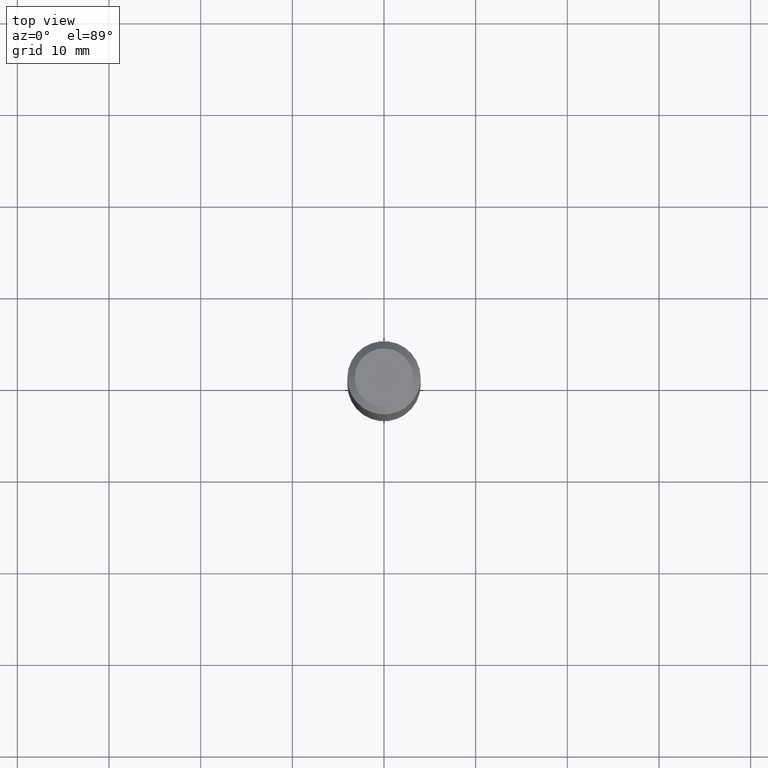
[diagram: clean part render]
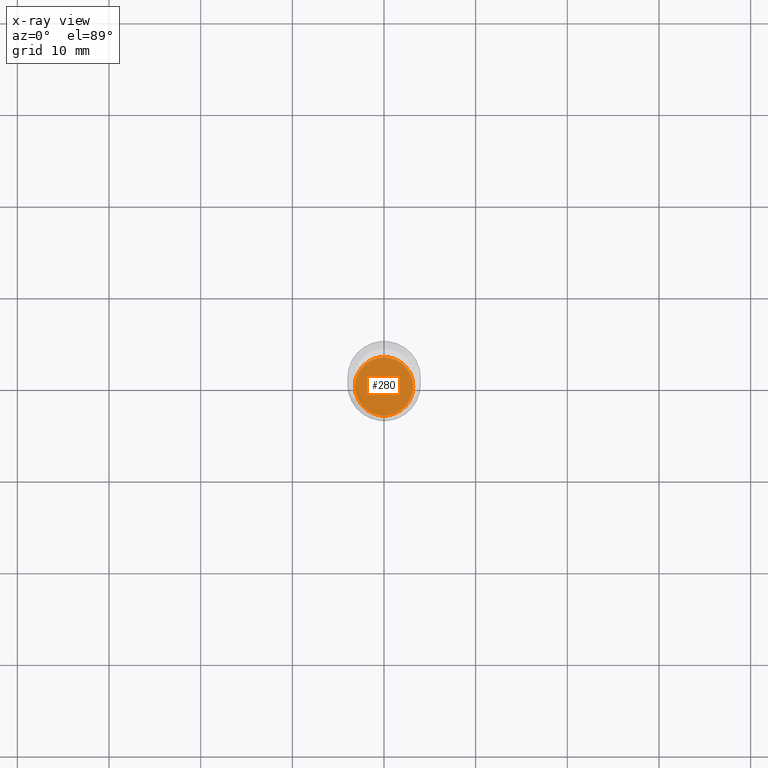
[diagram: x-ray — body ghosted, one internal face saturated and labeled with its STEP entity id]
A machine part, top view, then the same camera in x-ray: the body is ghosted and one INTERNAL B-rep face — a face not visible from any outside direction — is saturated and labeled: STEP entity #280.
In plain terms, the highlighted planar face has unit normal (-0, 0, 1).
Its self-contained STEP definition (entity closure, byte-faithful):
#18 = AXIS2_PLACEMENT_3D ( 'NONE', #449, #360, #185 ) ;
#50 = DIRECTION ( 'NONE',  ( 1.000000000000000000, -6.982962677686267499E-15, 0.000000000000000000 ) ) ;
#89 = VERTEX_POINT ( 'NONE', #349 ) ;
#106 = CARTESIAN_POINT ( 'NONE',  ( 5.295173606032675561E-29, -7.560104542997063911E-15, -2.165299999999999780 ) ) ;
#125 = EDGE_CURVE ( 'NONE', #89, #324, #138, .T. ) ;
#136 = FACE_OUTER_BOUND ( 'NONE', #390, .T. ) ;
#138 = CIRCLE ( 'NONE', #182, 0.1255000000000000004 ) ;
#152 = CIRCLE ( 'NONE', #427, 0.1255000000000000004 ) ;
#182 = AXIS2_PLACEMENT_3D ( 'NONE', #233, #311, #50 ) ;
#185 = DIRECTION ( 'NONE',  ( 1.000000000000000000, -6.982962677686265922E-15, 4.876176775795935793E-29 ) ) ;
#193 = ORIENTED_EDGE ( 'NONE', *, *, #125, .F. ) ;
#210 = PLANE ( 'NONE',  #18 ) ;
#214 = CARTESIAN_POINT ( 'NONE',  ( -0.1255000000000000004, -6.665724182444026579E-15, -2.165299999999999780 ) ) ;
#233 = CARTESIAN_POINT ( 'NONE',  ( 5.295173606032675561E-29, -7.560104542997063911E-15, -2.165299999999999780 ) ) ;
#280 = ADVANCED_FACE ( 'NONE', ( #136 ), #210, .F. ) ;
#295 = EDGE_CURVE ( 'NONE', #324, #89, #152, .T. ) ;
#311 = DIRECTION ( 'NONE',  ( -2.445468806185136597E-29, 3.491481338843145583E-15, 1.000000000000000000 ) ) ;
#317 = ORIENTED_EDGE ( 'NONE', *, *, #295, .F. ) ;
#324 = VERTEX_POINT ( 'NONE', #214 ) ;
#330 = DIRECTION ( 'NONE',  ( 1.000000000000000000, -6.982962677686267499E-15, 0.000000000000000000 ) ) ;
#349 = CARTESIAN_POINT ( 'NONE',  ( 0.1255000000000000004, -8.436466359046690257E-15, -2.165299999999999780 ) ) ;
#360 = DIRECTION ( 'NONE',  ( -2.438088387897960049E-29, 3.491481338843145188E-15, 1.000000000000000000 ) ) ;
#363 = DIRECTION ( 'NONE',  ( -2.445468806185136597E-29, 3.491481338843145583E-15, 1.000000000000000000 ) ) ;
#390 = EDGE_LOOP ( 'NONE', ( #193, #317 ) ) ;
#427 = AXIS2_PLACEMENT_3D ( 'NONE', #106, #363, #330 ) ;
#449 = CARTESIAN_POINT ( 'NONE',  ( 5.295173606032675561E-29, -7.560104542997063911E-15, -2.165299999999999780 ) ) ;